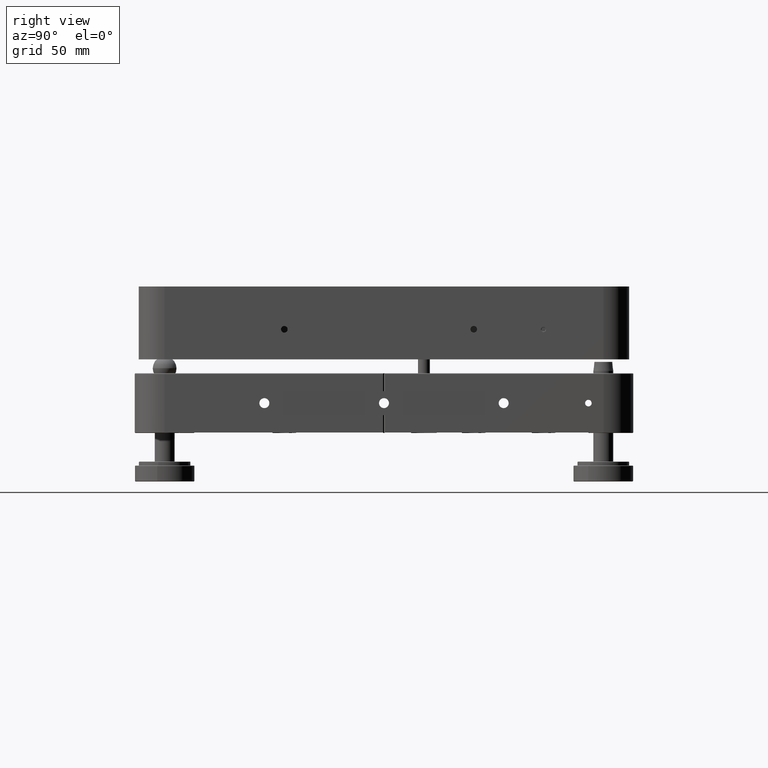
[diagram: clean part render]
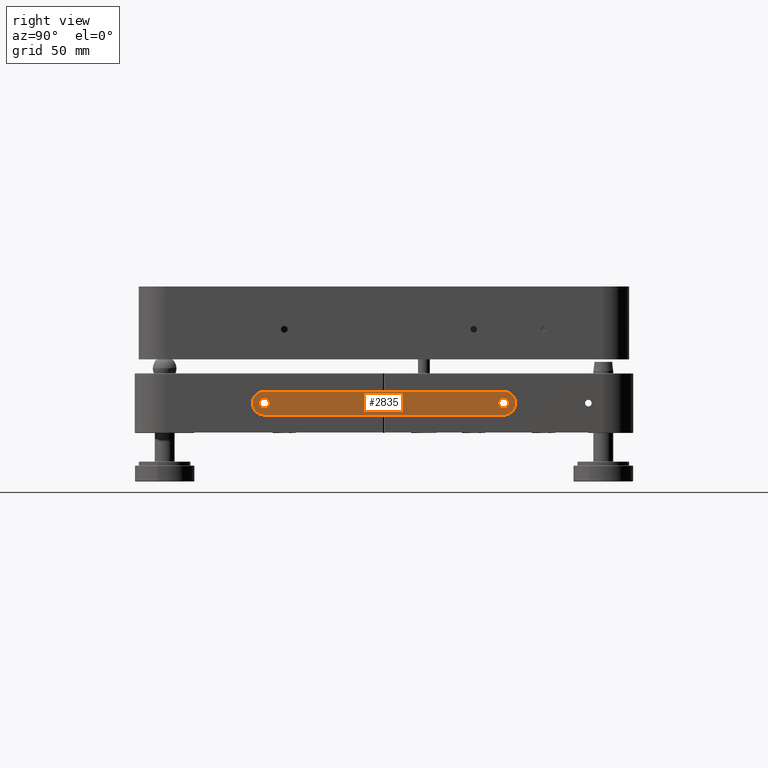
[diagram: same view with one face highlighted and labeled with its STEP entity id]
A machine part, right view. The second image highlights one B-rep face of the part: STEP entity #2835.
In plain terms, the highlighted planar face has unit normal (1, 0, 0).
Its self-contained STEP definition (entity closure, byte-faithful):
#11 = VERTEX_POINT ( 'NONE', #4589 ) ;
#148 = CARTESIAN_POINT ( 'NONE',  ( -0.5000000000000004441, 65.00000000000005684, 4.408728476930470382E-14 ) ) ;
#260 = DIRECTION ( 'NONE',  ( 0.000000000000000000, 0.000000000000000000, -1.000000000000000000 ) ) ;
#461 = CIRCLE ( 'NONE', #2077, 6.000000000000000888 ) ;
#534 = ORIENTED_EDGE ( 'NONE', *, *, #4425, .T. ) ;
#766 = CIRCLE ( 'NONE', #11391, 2.499999999999974243 ) ;
#995 = DIRECTION ( 'NONE',  ( -4.336808689942062602E-16, 1.000000000000000000, 0.000000000000000000 ) ) ;
#1263 = ORIENTED_EDGE ( 'NONE', *, *, #7956, .F. ) ;
#1432 = DIRECTION ( 'NONE',  ( -4.336808689942110427E-16, 1.000000000000000000, 0.000000000000000000 ) ) ;
#1511 = DIRECTION ( 'NONE',  ( -2.220446049250312834E-16, 1.000000000000000000, -3.035766082959412908E-16 ) ) ;
#1817 = DIRECTION ( 'NONE',  ( -4.336808689942110427E-16, 1.000000000000000000, 0.000000000000000000 ) ) ;
#1926 = CARTESIAN_POINT ( 'NONE',  ( -0.5000000000000004441, 65.00000000000005684, 2.499999999999971578 ) ) ;
#2077 = AXIS2_PLACEMENT_3D ( 'NONE', #3619, #11025, #4449 ) ;
#2220 = FACE_BOUND ( 'NONE', #2739, .T. ) ;
#2268 = AXIS2_PLACEMENT_3D ( 'NONE', #11935, #7233, #1432 ) ;
#2374 = VECTOR ( 'NONE', #3124, 1000.000000000000000 ) ;
#2643 = CARTESIAN_POINT ( 'NONE',  ( -0.5000000000000169864, 191.0000000000000568, 7.347880794884118356E-15 ) ) ;
#2739 = EDGE_LOOP ( 'NONE', ( #5632, #11909 ) ) ;
#2830 = VERTEX_POINT ( 'NONE', #8770 ) ;
#2835 = ADVANCED_FACE ( 'NONE', ( #6018, #4236, #2220, #3031 ), #11686, .T. ) ;
#2894 = CIRCLE ( 'NONE', #4112, 2.499999999999974243 ) ;
#2899 = DIRECTION ( 'NONE',  ( -2.220446049250312834E-16, 1.000000000000000000, -3.035766082959412908E-16 ) ) ;
#3031 = FACE_BOUND ( 'NONE', #9246, .T. ) ;
#3124 = DIRECTION ( 'NONE',  ( 2.220446049250312834E-16, -1.000000000000000000, 3.035766082959412908E-16 ) ) ;
#3214 = DIRECTION ( 'NONE',  ( -4.336808689942086268E-16, 1.000000000000000000, 0.000000000000000000 ) ) ;
#3282 = CIRCLE ( 'NONE', #3461, 2.499999999999946709 ) ;
#3368 = ORIENTED_EDGE ( 'NONE', *, *, #6953, .T. ) ;
#3461 = AXIS2_PLACEMENT_3D ( 'NONE', #11285, #11539, #1817 ) ;
#3604 = CARTESIAN_POINT ( 'NONE',  ( -0.5000000000000143219, 185.0000000000000568, 6.000000000000007994 ) ) ;
#3619 = CARTESIAN_POINT ( 'NONE',  ( -0.5000000000000004441, 65.00000000000005684, 4.408728476930470382E-14 ) ) ;
#3806 = VERTEX_POINT ( 'NONE', #11402 ) ;
#3894 = VERTEX_POINT ( 'NONE', #8221 ) ;
#3896 = CARTESIAN_POINT ( 'NONE',  ( -0.5000000000000004441, 65.00000000000005684, 7.347880794884118356E-15 ) ) ;
#3917 = CIRCLE ( 'NONE', #6747, 6.000000000000000888 ) ;
#3950 = ORIENTED_EDGE ( 'NONE', *, *, #7115, .F. ) ;
#4112 = AXIS2_PLACEMENT_3D ( 'NONE', #8408, #5586, #8019 ) ;
#4236 = FACE_OUTER_BOUND ( 'NONE', #8933, .T. ) ;
#4343 = VECTOR ( 'NONE', #2899, 1000.000000000000000 ) ;
#4413 = EDGE_CURVE ( 'NONE', #6114, #5138, #3282, .T. ) ;
#4425 = EDGE_CURVE ( 'NONE', #8049, #5720, #11913, .T. ) ;
#4449 = DIRECTION ( 'NONE',  ( 0.000000000000000000, 0.000000000000000000, -1.000000000000000000 ) ) ;
#4460 = DIRECTION ( 'NONE',  ( -1.000000000000000000, -4.440892098500625176E-16, -0.000000000000000000 ) ) ;
#4464 = VERTEX_POINT ( 'NONE', #11353 ) ;
#4572 = CARTESIAN_POINT ( 'NONE',  ( -0.5000000000000281997, 125.0000000000000568, 2.499999999999963585 ) ) ;
#4589 = CARTESIAN_POINT ( 'NONE',  ( -0.5000000000000004441, 125.0000000000000568, 6.000000000000005329 ) ) ;
#4605 = CARTESIAN_POINT ( 'NONE',  ( -0.5000000000000004441, 65.00000000000005684, -5.999999999999978684 ) ) ;
#4722 = DIRECTION ( 'NONE',  ( -1.000000000000000000, -4.440892098500625176E-16, -0.000000000000000000 ) ) ;
#4735 = LINE ( 'NONE', #10615, #4343 ) ;
#4955 = EDGE_CURVE ( 'NONE', #5138, #6114, #7701, .T. ) ;
#5024 = DIRECTION ( 'NONE',  ( -1.000000000000000000, -4.440892098500625176E-16, -0.000000000000000000 ) ) ;
#5138 = VERTEX_POINT ( 'NONE', #7220 ) ;
#5159 = VECTOR ( 'NONE', #8447, 1000.000000000000000 ) ;
#5316 = VERTEX_POINT ( 'NONE', #4572 ) ;
#5361 = DIRECTION ( 'NONE',  ( 0.000000000000000000, 0.000000000000000000, -1.000000000000000000 ) ) ;
#5489 = ORIENTED_EDGE ( 'NONE', *, *, #10860, .T. ) ;
#5586 = DIRECTION ( 'NONE',  ( -1.000000000000000000, -4.440892098500625176E-16, -0.000000000000000000 ) ) ;
#5632 = ORIENTED_EDGE ( 'NONE', *, *, #4413, .T. ) ;
#5720 = VERTEX_POINT ( 'NONE', #9386 ) ;
#5837 = ORIENTED_EDGE ( 'NONE', *, *, #6338, .F. ) ;
#5957 = ORIENTED_EDGE ( 'NONE', *, *, #12326, .F. ) ;
#6018 = FACE_BOUND ( 'NONE', #7845, .T. ) ;
#6114 = VERTEX_POINT ( 'NONE', #6681 ) ;
#6338 = EDGE_CURVE ( 'NONE', #11635, #9227, #3917, .T. ) ;
#6363 = VECTOR ( 'NONE', #1511, 1000.000000000000000 ) ;
#6524 = AXIS2_PLACEMENT_3D ( 'NONE', #3896, #4722, #10604 ) ;
#6681 = CARTESIAN_POINT ( 'NONE',  ( -0.5000000000000559552, 185.0000000000000568, -2.499999999999953371 ) ) ;
#6747 = AXIS2_PLACEMENT_3D ( 'NONE', #7360, #4460, #5361 ) ;
#6781 = ORIENTED_EDGE ( 'NONE', *, *, #9268, .F. ) ;
#6953 = EDGE_CURVE ( 'NONE', #5720, #8049, #8370, .T. ) ;
#7115 = EDGE_CURVE ( 'NONE', #11, #11635, #10247, .T. ) ;
#7220 = CARTESIAN_POINT ( 'NONE',  ( -0.5000000000000559552, 185.0000000000000568, 2.499999999999968026 ) ) ;
#7233 = DIRECTION ( 'NONE',  ( -1.000000000000000000, -4.440892098500625176E-16, -0.000000000000000000 ) ) ;
#7252 = VERTEX_POINT ( 'NONE', #11482 ) ;
#7281 = EDGE_CURVE ( 'NONE', #3806, #11, #4735, .T. ) ;
#7360 = CARTESIAN_POINT ( 'NONE',  ( -0.5000000000000143219, 185.0000000000000568, 7.347880794884118356E-15 ) ) ;
#7701 = CIRCLE ( 'NONE', #2268, 2.499999999999946709 ) ;
#7845 = EDGE_LOOP ( 'NONE', ( #5489, #11606 ) ) ;
#7912 = LINE ( 'NONE', #11720, #2374 ) ;
#7956 = EDGE_CURVE ( 'NONE', #7252, #3806, #461, .T. ) ;
#8019 = DIRECTION ( 'NONE',  ( -4.336808689942062602E-16, 1.000000000000000000, 0.000000000000000000 ) ) ;
#8049 = VERTEX_POINT ( 'NONE', #1926 ) ;
#8200 = DIRECTION ( 'NONE',  ( -1.000000000000000000, -4.440892098500625176E-16, -0.000000000000000000 ) ) ;
#8221 = CARTESIAN_POINT ( 'NONE',  ( -0.5000000000000143219, 125.0000000000000853, -5.999999999999996447 ) ) ;
#8370 = CIRCLE ( 'NONE', #11338, 2.499999999999960476 ) ;
#8408 = CARTESIAN_POINT ( 'NONE',  ( -0.5000000000000281997, 125.0000000000000568, 0.000000000000000000 ) ) ;
#8442 = EDGE_CURVE ( 'NONE', #9227, #4464, #9561, .T. ) ;
#8447 = DIRECTION ( 'NONE',  ( 2.220446049250312834E-16, -1.000000000000000000, 3.035766082959412908E-16 ) ) ;
#8770 = CARTESIAN_POINT ( 'NONE',  ( -0.5000000000000281997, 125.0000000000000568, -2.499999999999963585 ) ) ;
#8933 = EDGE_LOOP ( 'NONE', ( #6781, #5957, #11398, #5837, #3950, #12070, #1263 ) ) ;
#9160 = AXIS2_PLACEMENT_3D ( 'NONE', #10775, #5024, #10832 ) ;
#9227 = VERTEX_POINT ( 'NONE', #2643 ) ;
#9246 = EDGE_LOOP ( 'NONE', ( #3368, #534 ) ) ;
#9268 = EDGE_CURVE ( 'NONE', #3894, #7252, #7912, .T. ) ;
#9386 = CARTESIAN_POINT ( 'NONE',  ( -0.5000000000000004441, 65.00000000000005684, -2.499999999999956479 ) ) ;
#9561 = CIRCLE ( 'NONE', #9160, 6.000000000000000888 ) ;
#9612 = DIRECTION ( 'NONE',  ( -1.000000000000000000, -4.440892098500625176E-16, -0.000000000000000000 ) ) ;
#9875 = DIRECTION ( 'NONE',  ( 1.000000000000000000, 4.440892098500625176E-16, 0.000000000000000000 ) ) ;
#10083 = EDGE_CURVE ( 'NONE', #5316, #2830, #766, .T. ) ;
#10247 = LINE ( 'NONE', #12060, #6363 ) ;
#10429 = CARTESIAN_POINT ( 'NONE',  ( -0.5000000000000281997, 125.0000000000000568, 0.000000000000000000 ) ) ;
#10604 = DIRECTION ( 'NONE',  ( -4.336808689942086268E-16, 1.000000000000000000, 0.000000000000000000 ) ) ;
#10615 = CARTESIAN_POINT ( 'NONE',  ( -0.5000000000000004441, 65.00000000000005684, 6.000000000000023981 ) ) ;
#10642 = AXIS2_PLACEMENT_3D ( 'NONE', #148, #9875, #260 ) ;
#10775 = CARTESIAN_POINT ( 'NONE',  ( -0.5000000000000143219, 185.0000000000000568, 7.347880794884118356E-15 ) ) ;
#10832 = DIRECTION ( 'NONE',  ( 0.000000000000000000, 0.000000000000000000, -1.000000000000000000 ) ) ;
#10860 = EDGE_CURVE ( 'NONE', #2830, #5316, #2894, .T. ) ;
#10994 = CARTESIAN_POINT ( 'NONE',  ( -0.5000000000000004441, 65.00000000000005684, 7.347880794884118356E-15 ) ) ;
#11025 = DIRECTION ( 'NONE',  ( -1.000000000000000000, -4.440892098500625176E-16, -0.000000000000000000 ) ) ;
#11285 = CARTESIAN_POINT ( 'NONE',  ( -0.5000000000000559552, 185.0000000000000568, 7.347880794884118356E-15 ) ) ;
#11338 = AXIS2_PLACEMENT_3D ( 'NONE', #10994, #8200, #3214 ) ;
#11353 = CARTESIAN_POINT ( 'NONE',  ( -0.5000000000000143219, 185.0000000000000568, -6.000000000000015099 ) ) ;
#11391 = AXIS2_PLACEMENT_3D ( 'NONE', #10429, #9612, #995 ) ;
#11398 = ORIENTED_EDGE ( 'NONE', *, *, #8442, .F. ) ;
#11402 = CARTESIAN_POINT ( 'NONE',  ( -0.5000000000000004441, 65.00000000000005684, 6.000000000000023981 ) ) ;
#11482 = CARTESIAN_POINT ( 'NONE',  ( -0.5000000000000004441, 65.00000000000005684, -5.999999999999978684 ) ) ;
#11539 = DIRECTION ( 'NONE',  ( -1.000000000000000000, -4.440892098500625176E-16, -0.000000000000000000 ) ) ;
#11606 = ORIENTED_EDGE ( 'NONE', *, *, #10083, .T. ) ;
#11635 = VERTEX_POINT ( 'NONE', #3604 ) ;
#11650 = LINE ( 'NONE', #4605, #5159 ) ;
#11686 = PLANE ( 'NONE',  #10642 ) ;
#11720 = CARTESIAN_POINT ( 'NONE',  ( -0.5000000000000004441, 65.00000000000005684, -5.999999999999978684 ) ) ;
#11909 = ORIENTED_EDGE ( 'NONE', *, *, #4955, .T. ) ;
#11913 = CIRCLE ( 'NONE', #6524, 2.499999999999960476 ) ;
#11935 = CARTESIAN_POINT ( 'NONE',  ( -0.5000000000000559552, 185.0000000000000568, 7.347880794884118356E-15 ) ) ;
#12060 = CARTESIAN_POINT ( 'NONE',  ( -0.5000000000000004441, 65.00000000000005684, 6.000000000000023981 ) ) ;
#12070 = ORIENTED_EDGE ( 'NONE', *, *, #7281, .F. ) ;
#12326 = EDGE_CURVE ( 'NONE', #4464, #3894, #11650, .T. ) ;